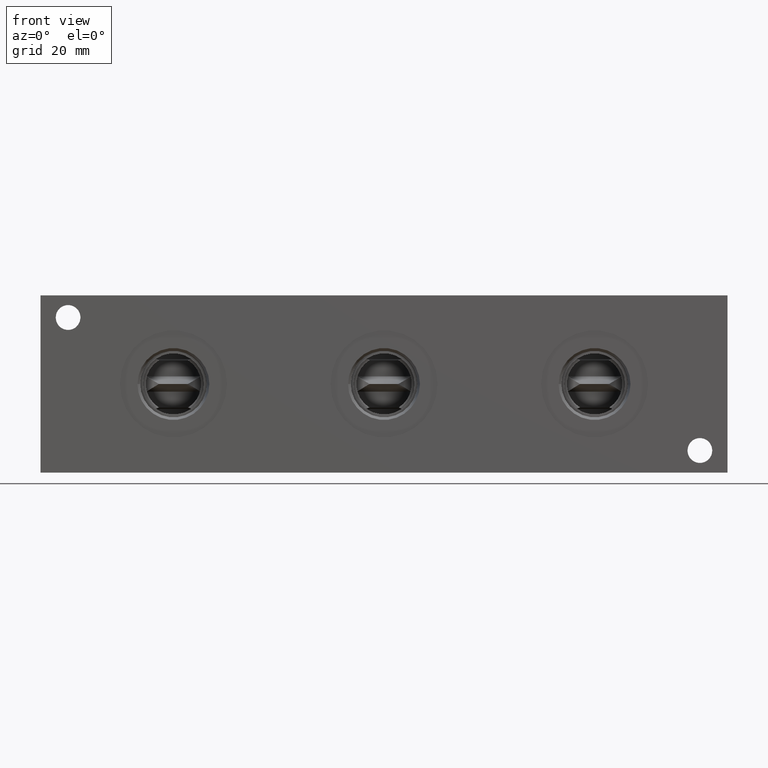
[diagram: clean part render]
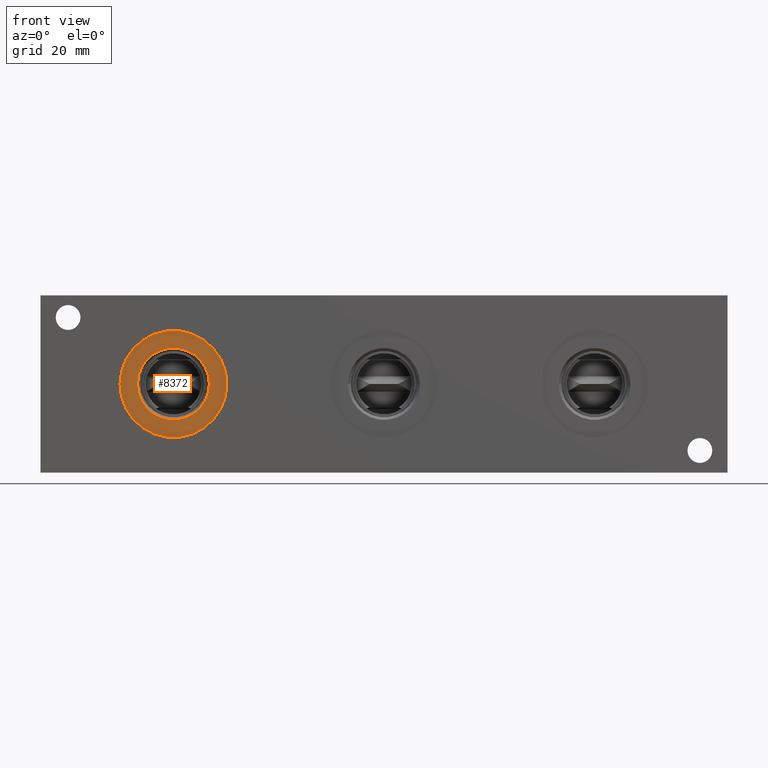
[diagram: same view with one face highlighted and labeled with its STEP entity id]
A machine part, front view. The second image highlights one B-rep face of the part: STEP entity #8372.
In plain terms, the highlighted planar face has unit normal (0, 1, 0).
Its self-contained STEP definition (entity closure, byte-faithful):
#237=CIRCLE('',#8835,15.3162);
#238=CIRCLE('',#8836,15.3162);
#239=CIRCLE('',#8838,10.2997);
#240=CIRCLE('',#8839,10.2997);
#361=FACE_BOUND('',#1469,.T.);
#593=PLANE('',#8837);
#993=FACE_OUTER_BOUND('',#1468,.T.);
#1468=EDGE_LOOP('',(#7264,#7265));
#1469=EDGE_LOOP('',(#7266,#7267));
#3930=VERTEX_POINT('',#14505);
#3931=VERTEX_POINT('',#14507);
#3932=VERTEX_POINT('',#14511);
#3933=VERTEX_POINT('',#14512);
#5071=EDGE_CURVE('',#3930,#3931,#237,.T.);
#5072=EDGE_CURVE('',#3931,#3930,#238,.T.);
#5073=EDGE_CURVE('',#3932,#3933,#239,.T.);
#5074=EDGE_CURVE('',#3933,#3932,#240,.T.);
#7264=ORIENTED_EDGE('',*,*,#5072,.F.);
#7265=ORIENTED_EDGE('',*,*,#5071,.F.);
#7266=ORIENTED_EDGE('',*,*,#5073,.T.);
#7267=ORIENTED_EDGE('',*,*,#5074,.T.);
#8372=ADVANCED_FACE('',(#993,#361),#593,.F.);
#8835=AXIS2_PLACEMENT_3D('',#14508,#10434,#10435);
#8836=AXIS2_PLACEMENT_3D('',#14509,#10436,#10437);
#8837=AXIS2_PLACEMENT_3D('',#14510,#10438,#10439);
#8838=AXIS2_PLACEMENT_3D('',#14513,#10440,#10441);
#8839=AXIS2_PLACEMENT_3D('',#14514,#10442,#10443);
#10434=DIRECTION('center_axis',(0.,1.,0.));
#10435=DIRECTION('ref_axis',(1.,0.,0.));
#10436=DIRECTION('center_axis',(0.,1.,0.));
#10437=DIRECTION('ref_axis',(1.,0.,0.));
#10438=DIRECTION('center_axis',(0.,1.,0.));
#10439=DIRECTION('ref_axis',(0.,0.,1.));
#10440=DIRECTION('center_axis',(0.,1.,0.));
#10441=DIRECTION('ref_axis',(1.,0.,0.));
#10442=DIRECTION('center_axis',(0.,1.,0.));
#10443=DIRECTION('ref_axis',(1.,0.,0.));
#14505=CARTESIAN_POINT('',(22.7838,0.7874,25.4));
#14507=CARTESIAN_POINT('',(53.4162,0.7874,25.4));
#14508=CARTESIAN_POINT('Origin',(38.1,0.7874,25.4));
#14509=CARTESIAN_POINT('Origin',(38.1,0.7874,25.4));
#14510=CARTESIAN_POINT('Origin',(48.3997,0.7874,25.4));
#14511=CARTESIAN_POINT('',(48.3997,0.7874,25.4));
#14512=CARTESIAN_POINT('',(27.8003,0.787400000000001,25.4));
#14513=CARTESIAN_POINT('Origin',(38.1,0.7874,25.4));
#14514=CARTESIAN_POINT('Origin',(38.1,0.7874,25.4));